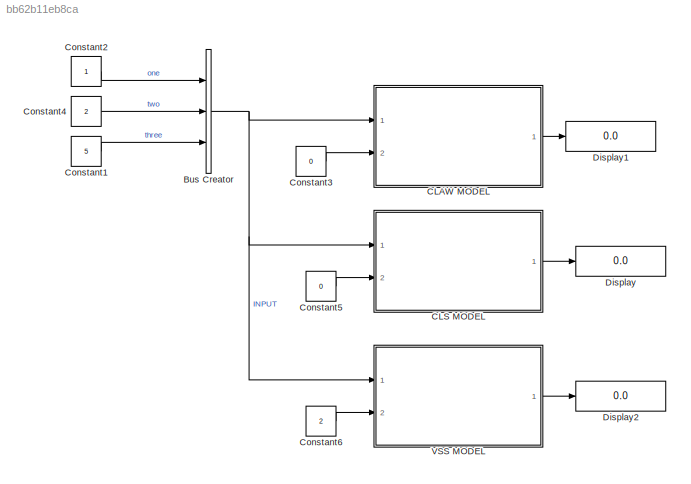
MODEL slx_bb62b11eb8ca
KIND model
CONFIG AbsTol = auto
CONFIG EnableMultiTasking = off
CONFIG FixedStep = 0.01
CONFIG MaxStep = auto
CONFIG MinStep = auto
CONFIG RelTol = 1e-3
CONFIG SampleTimeConstraint = Unconstrained
CONFIG Solver = FixedStepDiscrete
CONFIG SolverName = FixedStepDiscrete
CONFIG StartTime = 0.0
CONFIG StopTime = inf
BLOCK [BusCreator] Bus Creator
  DisplayOption = bar
  InheritFromInputs = on
  Inputs = 'one','two','three'
  OutDataTypeStr = Bus: INPUTS
  Ports = [3, 1]
BLOCK [ModelReference] CLAW MODEL
  ModelNameDialog = claw_model.slx
  ModelReferenceVersion = 1.11
  Ports = [2, 1]
  Variant = off
BLOCK [ModelReference] CLS MODEL
  ModelNameDialog = cls_model.slx
  ModelReferenceVersion = 1.13
  Ports = [2, 1]
  Variant = off
BLOCK [Constant] Constant1
  Value = 5
BLOCK [Constant] Constant2
BLOCK [Constant] Constant3
  Value = 0
BLOCK [Constant] Constant4
  Value = 2
BLOCK [Constant] Constant5
  Value = 0
BLOCK [Constant] Constant6
  Value = 2
BLOCK [Display] Display
  Decimation = 1
  Ports = [1]
BLOCK [Display] Display1
  Decimation = 1
  Ports = [1]
BLOCK [Display] Display2
  Decimation = 1
  Ports = [1]
BLOCK [ModelReference] VSS MODEL
  ModelNameDialog = vss_model.slx
  ModelReferenceVersion = 1.15
  Ports = [2, 1]
  Variant = off
NET Bus Creator:1 -> CLAW MODEL:1, CLS MODEL:1, VSS MODEL:1
LINE CLAW MODEL:1 -> Display1:1
LINE CLS MODEL:1 -> Display:1
LINE Constant1:1 -> Bus Creator:3
LINE Constant2:1 -> Bus Creator:1
LINE Constant3:1 -> CLAW MODEL:2
LINE Constant4:1 -> Bus Creator:2
LINE Constant5:1 -> CLS MODEL:2
LINE Constant6:1 -> VSS MODEL:2
LINE VSS MODEL:1 -> Display2:1
note: NET lines group one-source signal fan-out (src -> all destinations, sorted); 1:1 wires keep LINE
